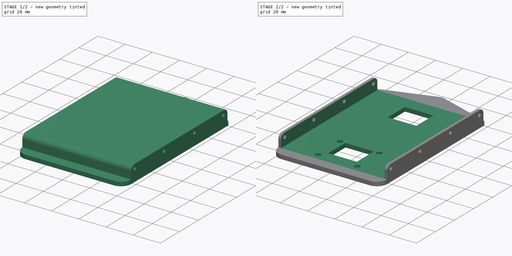
[diagram: build sequence overview — one tinted view per stage of 2, left to right]
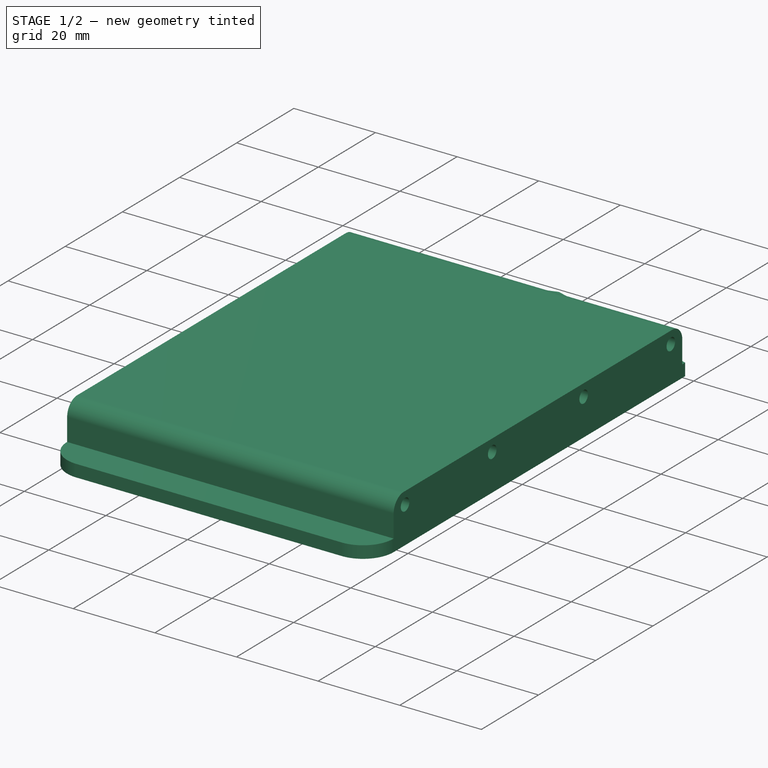
[diagram: stage 1 of 2 — iso view after this stage's code; geometry added in this stage tinted green]
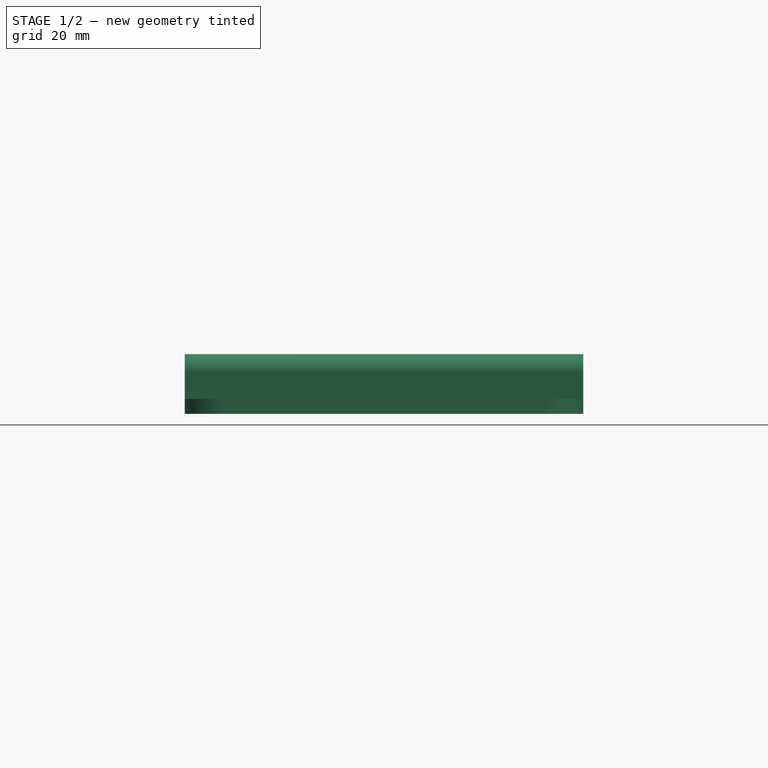
[diagram: stage 1 of 2 — front view after this stage's code; geometry added in this stage tinted green]
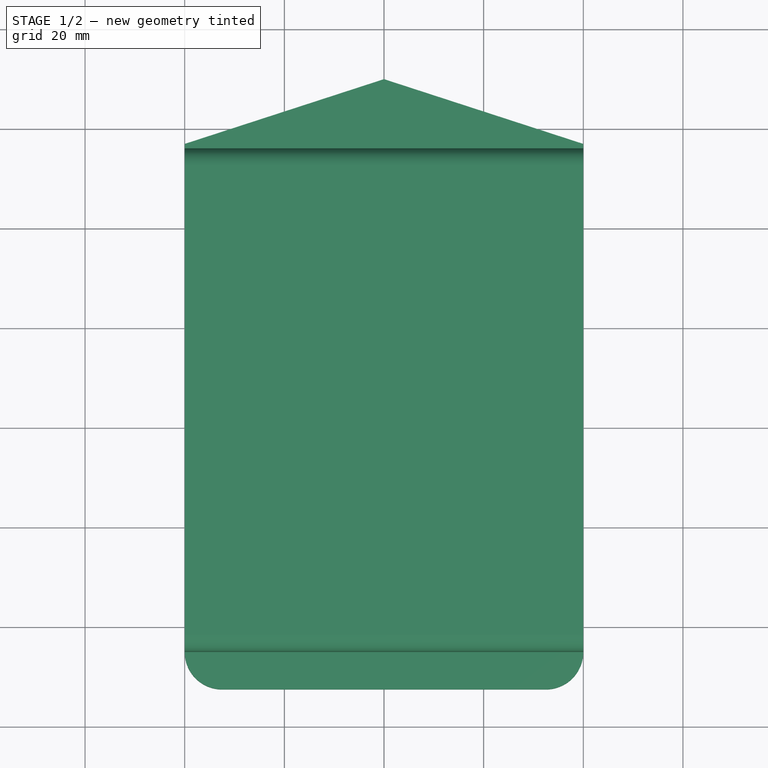
[diagram: stage 1 of 2 — top view after this stage's code; geometry added in this stage tinted green]
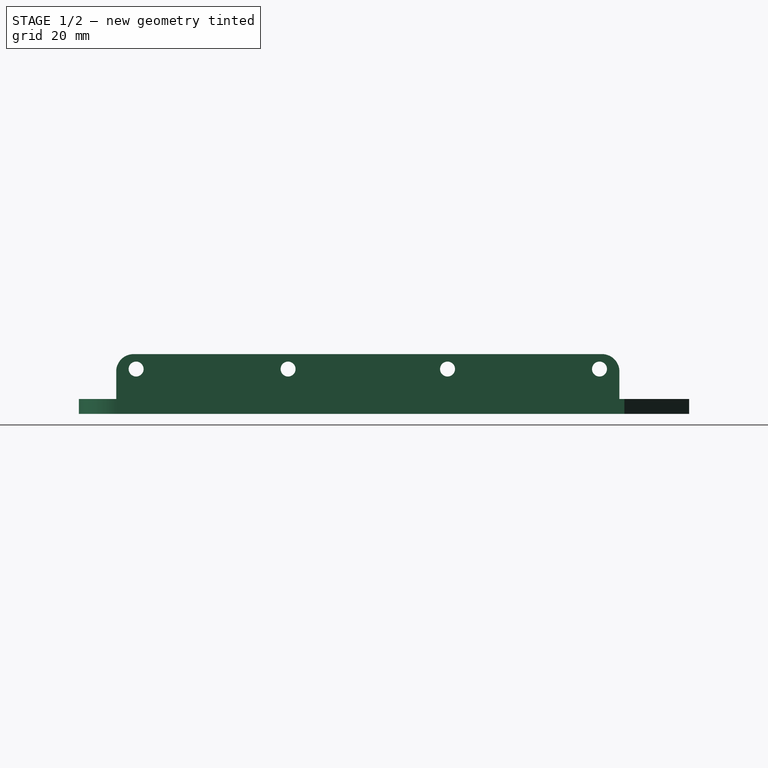
[diagram: stage 1 of 2 — right view after this stage's code; geometry added in this stage tinted green]
FCSTD DOCUMENT  (FreeCAD 0.20R29177 (Git))
Label: 2. Unterbau
License: All rights reserved
LicenseURL: http://en.wikipedia.org/wiki/All_rights_reserved
objects: Sketcher::SketchObject×4, PartDesign::Pad×2, PartDesign::Pocket×2, PartDesign::Body×1
note: 13 computed .brp shape members not serialized (recipe doc carries the construction recipe); baked Part::Feature solids carry a one-line shape summary decoded from their .brp

FEATURE [Sketcher::SketchObject] Sketch
  FullyConstrained = true
  MapMode = 5
  Support = -> [XY_Plane]
  sketch-geometry (9):
    g0: LineSegment StartX=-40 StartY=0 StartZ=0 EndX=-40 EndY=-85 EndZ=0
    g1: ArcOfCircle CenterX=-32.5 CenterY=-85 CenterZ=0 NormalX=0 NormalY=0 NormalZ=1 AngleXU=0 Radius=7.5 StartAngle=3.14159 EndAngle=4.71239
    g2: LineSegment StartX=-32.5 StartY=-92.5 StartZ=0 EndX=32.5 EndY=-92.5 EndZ=0
    g3: ArcOfCircle CenterX=32.5 CenterY=-85 CenterZ=0 NormalX=0 NormalY=0 NormalZ=1 AngleXU=0 Radius=7.5 StartAngle=4.71239 EndAngle=6.28319
    g4: LineSegment StartX=40 StartY=0 StartZ=0 EndX=40 EndY=-85 EndZ=0
    g5: LineSegment StartX=40 StartY=0 StartZ=0 EndX=40 EndY=17 EndZ=0
    g6: LineSegment StartX=-40 StartY=0 StartZ=0 EndX=-40 EndY=17 EndZ=0
    g7: LineSegment StartX=-40 StartY=17 StartZ=0 EndX=0 EndY=30 EndZ=0
    g8: LineSegment StartX=0 StartY=30 StartZ=0 EndX=40 EndY=17 EndZ=0
  constraints (24):
    c: Vertical(g0)
    c: Horizontal(g2)
    c: Tangent(g4,g3) = 1.5708
    c: Tangent(g1,g0) = -1.5708
    c: Tangent(g3,g2) = -1.5708
    c: Tangent(g2,g1) = -1.5708
    c: Perpendicular(g-1,g4)
    c: Horizontal(g0,g3)
    c: DistanceX(g1,g2) = 65
    c: DistanceX(g0,g4) = 80
    c: Coincident(g5,g4)
    c: Vertical(g5)
    c: Coincident(g6,g0)
    c: Vertical(g6)
    c: PointOnObject(g4,g-1)
    c: Symmetric(g0,g4,g-2)
    c: DistanceY(g5,g5) = 17
    c: Horizontal(g6,g5)
    c: Coincident(g7,g6)
    c: PointOnObject(g7,g-2)
    c: Coincident(g8,g7)
    c: Coincident(g8,g5)
    c: DistanceY(g-1,g7) = 30
    c: DistanceY(g3,g4) = 85
FEATURE [PartDesign::Pad] Pad
  Direction = (0,0,1)
  Length = 3
  Length2 = 10
  Profile = -> Sketch
  ReferenceAxis = -> Sketch [N_Axis]
  Type = 0
FEATURE [Sketcher::SketchObject] Sketch001
  FullyConstrained = false
  MapMode = 5
  Placement = pos=(40,0,0) rot=(0.57735,0.57735,0.57735;2.0944rad)
  Support = -> [Pad]
  sketch-geometry (12):
    g0: LineSegment StartX=-81.5 StartY=12 StartZ=0 EndX=12.5 EndY=12 EndZ=0
    g1: LineSegment StartX=16 StartY=8.5 StartZ=0 EndX=16 EndY=0 EndZ=0
    g2: LineSegment StartX=16 StartY=0 StartZ=0 EndX=-85 EndY=0 EndZ=0
    g3: LineSegment StartX=-85 StartY=0 StartZ=0 EndX=-85 EndY=8.5 EndZ=0
    g4: Circle CenterX=-81 CenterY=9 CenterZ=0 NormalX=0 NormalY=0 NormalZ=1 AngleXU=0 Radius=1.5
    g5: Circle CenterX=-50.5 CenterY=9 CenterZ=0 NormalX=0 NormalY=0 NormalZ=1 AngleXU=0 Radius=1.5
    g6: Circle CenterX=-18.5 CenterY=9 CenterZ=0 NormalX=0 NormalY=0 NormalZ=1 AngleXU=0 Radius=1.5
    g7: Circle CenterX=12 CenterY=9 CenterZ=0 NormalX=0 NormalY=0 NormalZ=1 AngleXU=0 Radius=1.5
    g8: ArcOfCircle CenterX=-81.5 CenterY=8.5 CenterZ=0 NormalX=0 NormalY=0 NormalZ=1 AngleXU=0 Radius=3.5 StartAngle=1.5708 EndAngle=3.14159
    g9: ArcOfCircle CenterX=12.5 CenterY=8.5 CenterZ=0 NormalX=0 NormalY=0 NormalZ=1 AngleXU=0 Radius=3.5 StartAngle=1.55e-14 EndAngle=1.5708
    g10: LineSegment StartX=-65.75 StartY=21.6882 StartZ=0 EndX=-65.75 EndY=0 EndZ=0
    g11: LineSegment StartX=-3.25 StartY=20.3639 StartZ=0 EndX=-3.25 EndY=0 EndZ=0
  constraints (32):
    c: Horizontal(g0)
    c: PointOnObject(g1,g-1)
    c: Vertical(g1)
    c: Coincident(g2,g1)
    c: PointOnObject(g2,g-1)
    c: Coincident(g3,g2)
    c: Vertical(g3)
    c: Horizontal(g5,g4)
    c: Equal(g4,g5)
    c: DistanceX(g4,g5) = 30.5
    c: DistanceY(g2,g4) = 9
    c: Equal(g7,g6)
    c: Equal(g6,g5)
    c: Diameter(g7) = 3
    c: DistanceX(g6,g7) = 30.5
    c: DistanceX(g5,g6) = 32
    c: DistanceY(g-1,g0) = 12
    c: Tangent(g9,g0) = 1.5708
    c: Tangent(g8,g0) = 1.5708
    c: Tangent(g9,g1) = 1.5708
    c: Tangent(g8,g3) = 1.5708
    c: DistanceX(g2,g-1) = 85
    c: DistanceX(g0,g0) = 94
    c: Horizontal(g6,g5)
    c: Horizontal(g5,g7)
    c: DistanceX(g2,g4) = 4
    c: DistanceX(g7,g1) = 4
    c: Equal(g9,g8)
    c: PointOnObject(g11,g2)
    c: PointOnObject(g10,g2)
    c: Symmetric(g4,g5,g10)
    c: Symmetric(g6,g7,g11)
FEATURE [PartDesign::Pad] Pad001
  BaseFeature = -> Pad
  Direction = (1,0,0)
  Length = 80
  Length2 = 10
  Profile = -> Sketch001
  ReferenceAxis = -> Sketch001 [N_Axis]
  Reversed = true
  Type = 0
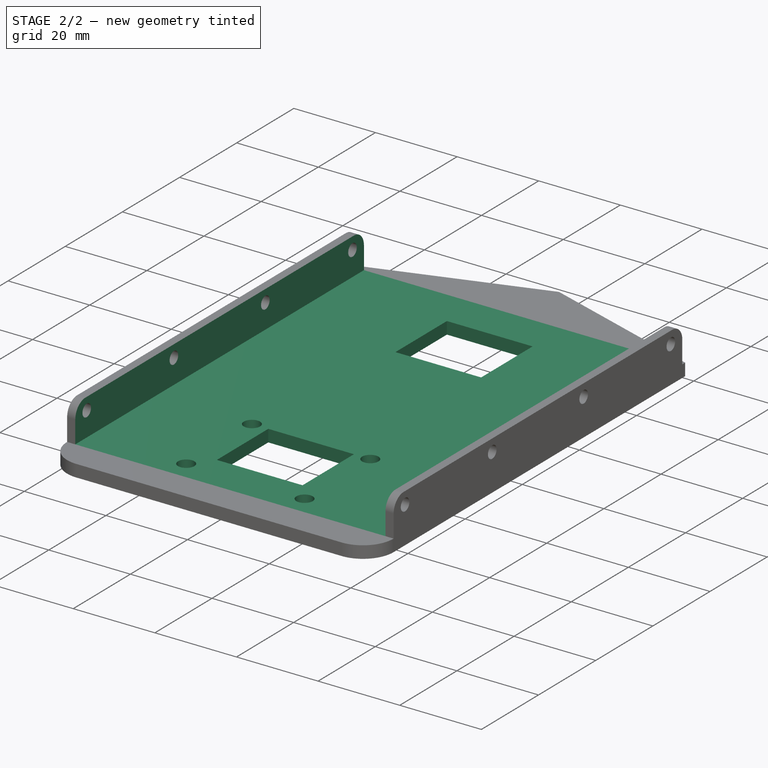
[diagram: stage 2 of 2 — iso view after this stage's code; geometry added in this stage tinted green]
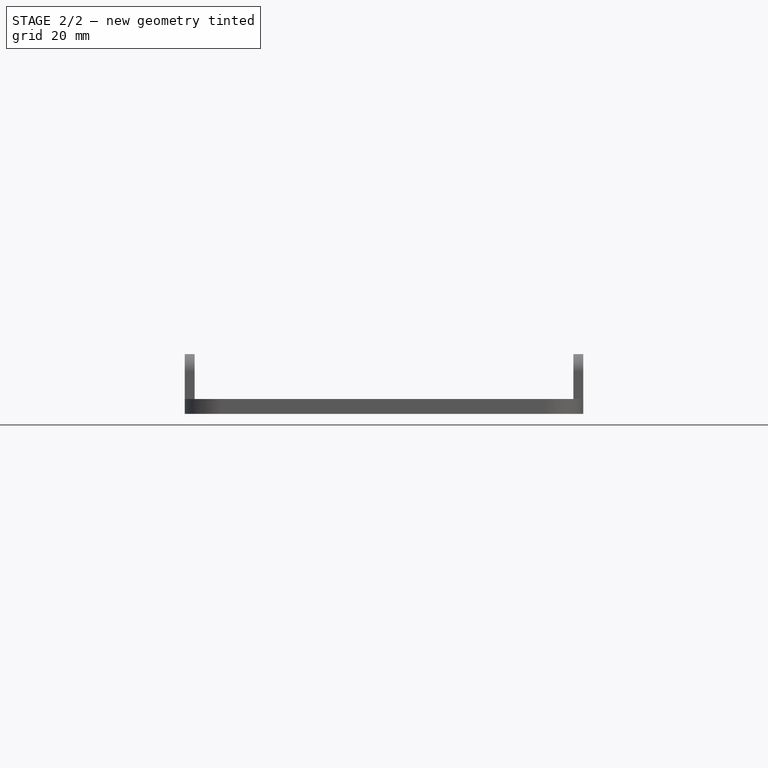
[diagram: stage 2 of 2 — front view after this stage's code; geometry added in this stage tinted green]
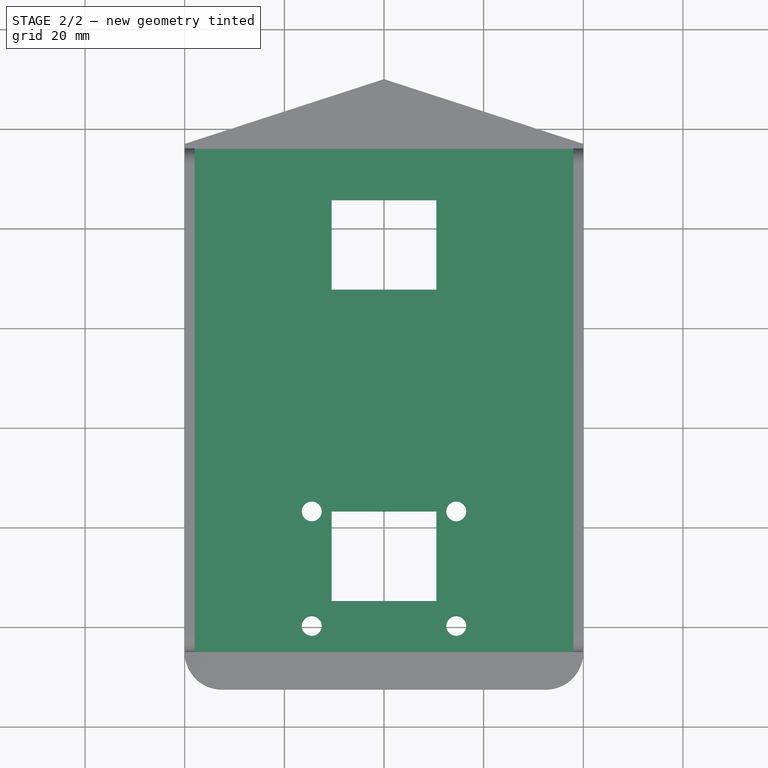
[diagram: stage 2 of 2 — top view after this stage's code; geometry added in this stage tinted green]
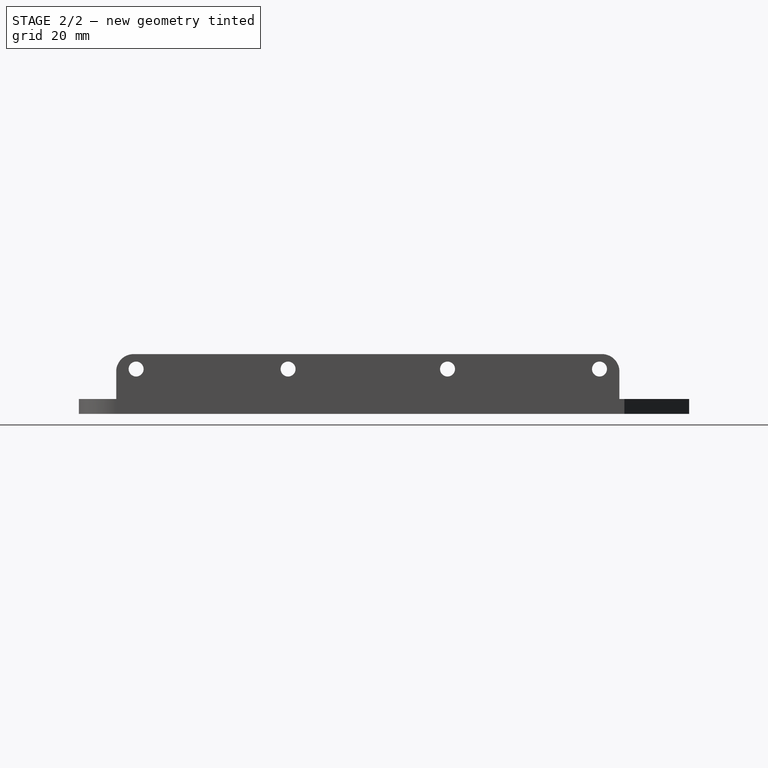
[diagram: stage 2 of 2 — right view after this stage's code; geometry added in this stage tinted green]
FEATURE [Sketcher::SketchObject] Sketch002
  FullyConstrained = true
  MapMode = 5
  Placement = pos=(0,-92.5,0) rot=(1,0,0;1.5708rad)
  Support = -> [Pad001]
  sketch-geometry (4):
    g0: LineSegment StartX=-38 StartY=13 StartZ=0 EndX=38 EndY=13 EndZ=0
    g1: LineSegment StartX=38 StartY=13 StartZ=0 EndX=38 EndY=3 EndZ=0
    g2: LineSegment StartX=38 StartY=3 StartZ=0 EndX=-38 EndY=3 EndZ=0
    g3: LineSegment StartX=-38 StartY=3 StartZ=0 EndX=-38 EndY=13 EndZ=0
  constraints (11):
    c: Coincident(g0,g1)
    c: Coincident(g1,g2)
    c: Coincident(g2,g3)
    c: Coincident(g3,g0)
    c: Horizontal(g2)
    c: Vertical(g1)
    c: Vertical(g3)
    c: DistanceY(g-1,g2) = 3
    c: DistanceY(g3,g3) = 10
    c: Symmetric(g0,g0,g-2)
    c: DistanceX(g0,g0) = 76
FEATURE [PartDesign::Pocket] Pocket
  BaseFeature = -> Pad001
  Direction = (0,1,-2e-16)
  Length = 700
  Length2 = 5
  Profile = -> Sketch002
  ReferenceAxis = -> Sketch002 [N_Axis]
  Type = 0
FEATURE [Sketcher::SketchObject] Sketch003
  FullyConstrained = false
  MapMode = 5
  Placement = pos=(0,0,0) rot=(1,0,0;3.14159rad)
  Support = -> [Pocket]
  sketch-geometry (18):
    g0: LineSegment StartX=-10.5 StartY=74.75 StartZ=0 EndX=10.5 EndY=74.75 EndZ=0
    g1: LineSegment StartX=10.5 StartY=74.75 StartZ=0 EndX=10.5 EndY=56.75 EndZ=0
    g2: LineSegment StartX=10.5 StartY=56.75 StartZ=0 EndX=-10.5 EndY=56.75 EndZ=0
    g3: LineSegment StartX=-10.5 StartY=56.75 StartZ=0 EndX=-10.5 EndY=74.75 EndZ=0
    g4: LineSegment StartX=-10.5 StartY=12.25 StartZ=0 EndX=10.5 EndY=12.25 EndZ=0
    g5: LineSegment StartX=10.5 StartY=12.25 StartZ=0 EndX=10.5 EndY=-5.75 EndZ=0
    g6: LineSegment StartX=10.5 StartY=-5.75 StartZ=0 EndX=-10.5 EndY=-5.75 EndZ=0
    g7: LineSegment StartX=-10.5 StartY=-5.75 StartZ=0 EndX=-10.5 EndY=12.25 EndZ=0
    g8: GeomPoint X=10.5 Y=65.75 Z=0
    g9: LineSegment StartX=-40.4491 StartY=0 StartZ=0 EndX=40.7171 EndY=0 EndZ=0
    g10: LineSegment StartX=40.7171 StartY=0 StartZ=0 EndX=40.7171 EndY=85 EndZ=0
    g11: LineSegment StartX=40.7171 StartY=85 StartZ=0 EndX=-40.4491 EndY=85 EndZ=0
    g12: LineSegment StartX=-40.4491 StartY=85 StartZ=0 EndX=-40.4491 EndY=0 EndZ=0
    g13: GeomPoint X=10.5 Y=3.25 Z=0
    g14: Circle CenterX=14.5 CenterY=79.75 CenterZ=0 NormalX=0 NormalY=0 NormalZ=1 AngleXU=0 Radius=2
    g15: Circle CenterX=-14.5 CenterY=79.75 CenterZ=0 NormalX=0 NormalY=0 NormalZ=1 AngleXU=0 Radius=2
    g16: Circle CenterX=-14.5 CenterY=56.75 CenterZ=0 NormalX=0 NormalY=0 NormalZ=1 AngleXU=0 Radius=2
    g17: Circle CenterX=14.5 CenterY=56.75 CenterZ=0 NormalX=0 NormalY=0 NormalZ=1 AngleXU=0 Radius=2
  constraints (44):
    c: Coincident(g0,g1)
    c: Coincident(g1,g2)
    c: Coincident(g2,g3)
    c: Coincident(g3,g0)
    c: Horizontal(g0)
    c: Vertical(g1)
    c: Vertical(g3)
    c: Coincident(g4,g5)
    c: Coincident(g5,g6)
    c: Coincident(g6,g7)
    c: Coincident(g7,g4)
    c: Horizontal(g4)
    c: Vertical(g5)
    c: Vertical(g7)
    c: DistanceY(g1,g1) = 18
    c: Equal(g1,g5)
    c: Symmetric(g2,g1,g-2)
    c: Symmetric(g5,g6,g-2)
    c: Coincident(g9,g10)
    c: Coincident(g10,g11)
    c: Coincident(g11,g12)
    c: Coincident(g12,g9)
    c: Horizontal(g9)
    c: Horizontal(g11)
    c: Vertical(g10)
    c: Vertical(g12)
    c: DistanceY(g-1,g10) = 85
    c: DistanceY(g8,g10) = 19.25
    c: Symmetric(g1,g0,g8)
    c: Equal(g4,g0)
    c: DistanceX(g0,g0) = 21
    c: Symmetric(g5,g4,g13)
    c: DistanceY(g13,g8) = 62.5
    c: PointOnObject(g9,g-1)
    c: DistanceX(g15,g14) = 29
    c: Symmetric(g15,g14,g-2)
    c: Symmetric(g16,g17,g-2)
    c: Equal(g17,g14)
    c: Equal(g14,g15)
    c: Equal(g15,g16)
    c: Diameter(g14) = 4
    c: DistanceY(g17,g14) = 23
    c: Vertical(g17,g14)
    c: Horizontal(g1,g17)
FEATURE [PartDesign::Pocket] Pocket001
  BaseFeature = -> Pocket
  Direction = (0,0,1)
  Length = 5
  Length2 = 5
  Profile = -> Sketch003
  ReferenceAxis = -> Sketch003 [N_Axis]
  Type = 0
FEATURE [PartDesign::Body] Body
  Group = -> [Sketch,Pad,Sketch001,Pad001,Sketch002,Pocket,Sketch003,Pocket001]
  Origin = -> Origin
  Tip = -> Pocket001
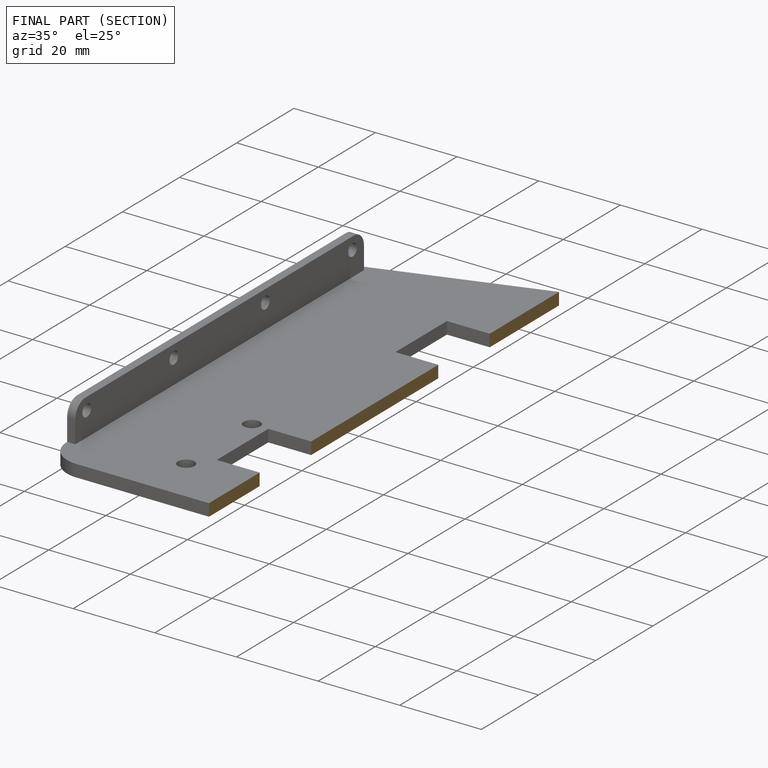
[diagram: finished part — half-section view (interior)]
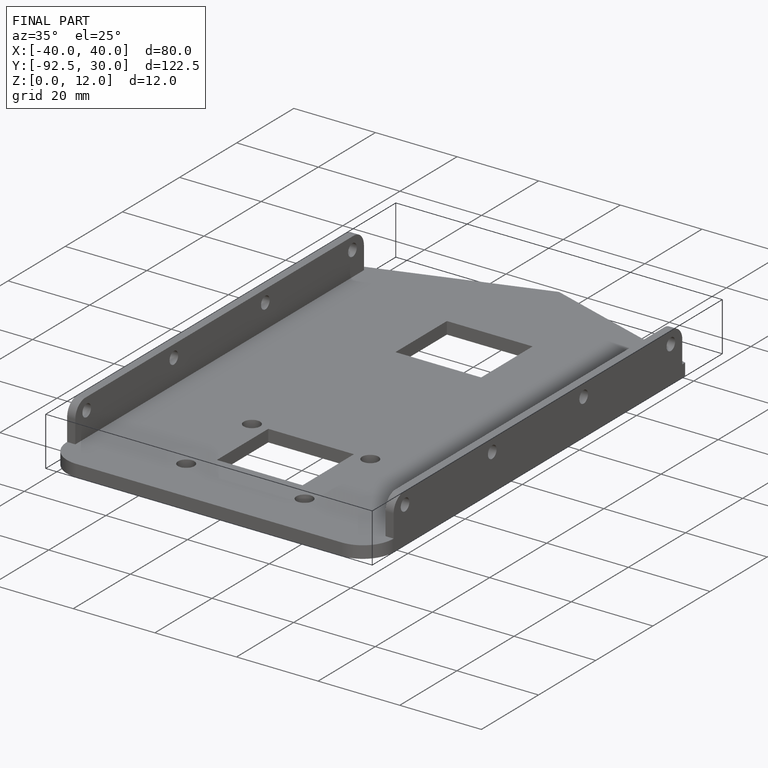
[diagram: finished part — iso view with bounding-box wireframe]
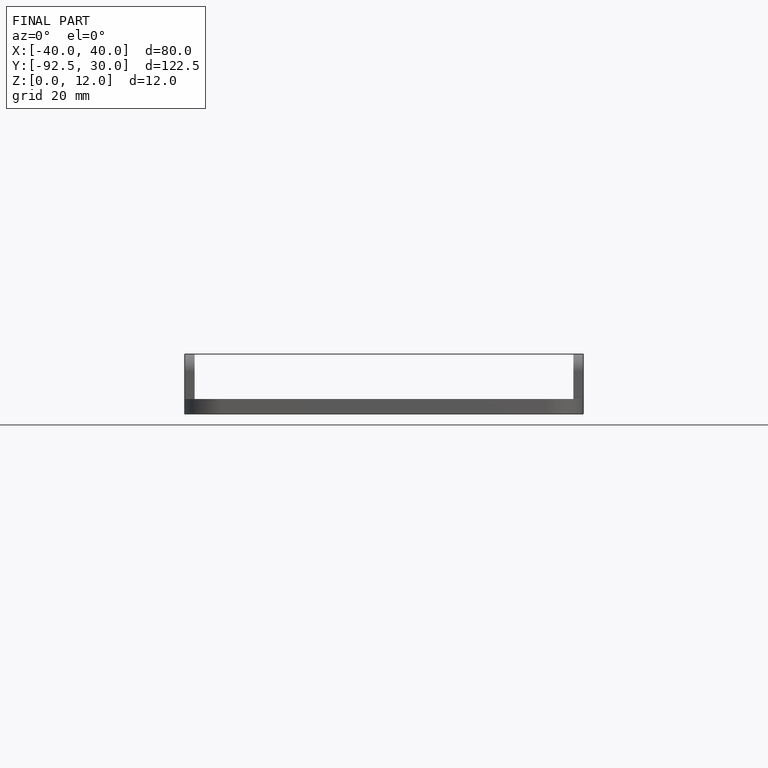
[diagram: finished part — front view with bounding-box wireframe]
